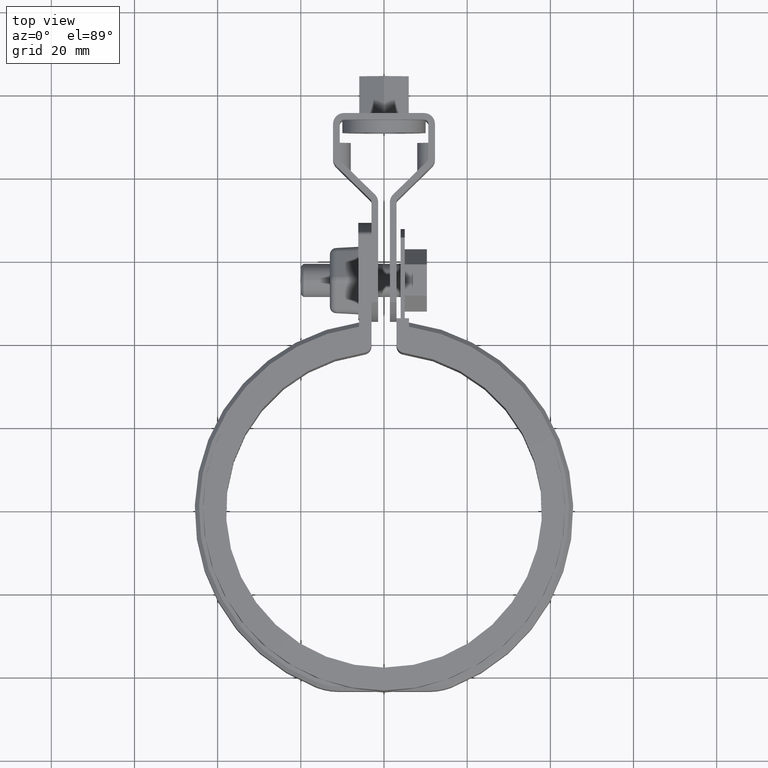
[diagram: clean part render]
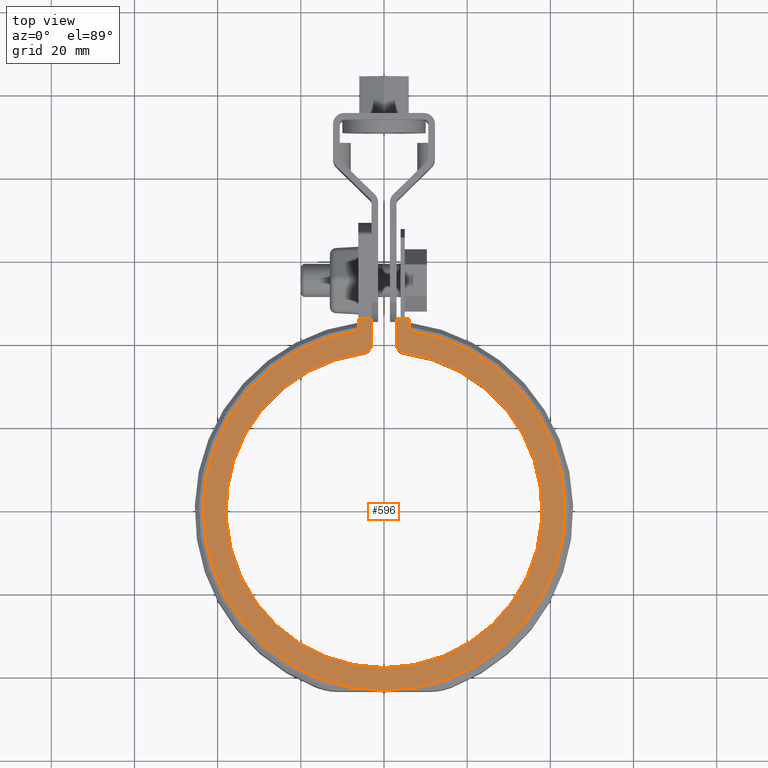
[diagram: same view with one face highlighted and labeled with its STEP entity id]
A machine part, top view. The second image highlights one B-rep face of the part: STEP entity #596.
In plain terms, the highlighted planar face has unit normal (0, 0, -1).
Its self-contained STEP definition (entity closure, byte-faithful):
#596 = ADVANCED_FACE( '', ( #1102 ), #1103, .F. );
#1102 = FACE_OUTER_BOUND( '', #2410, .T. );
#1103 = PLANE( '', #2411 );
#2410 = EDGE_LOOP( '', ( #5437, #5438, #5439, #5440, #5441, #5442, #5443, #5444, #5445, #5446 ) );
#2411 = AXIS2_PLACEMENT_3D( '', #5447, #5448, #5449 );
#5437 = ORIENTED_EDGE( '', *, *, #7465, .F. );
#5438 = ORIENTED_EDGE( '', *, *, #7437, .F. );
#5439 = ORIENTED_EDGE( '', *, *, #7454, .F. );
#5440 = ORIENTED_EDGE( '', *, *, #7482, .F. );
#5441 = ORIENTED_EDGE( '', *, *, #7702, .F. );
#5442 = ORIENTED_EDGE( '', *, *, #7703, .T. );
#5443 = ORIENTED_EDGE( '', *, *, #7674, .T. );
#5444 = ORIENTED_EDGE( '', *, *, #7653, .T. );
#5445 = ORIENTED_EDGE( '', *, *, #7677, .T. );
#5446 = ORIENTED_EDGE( '', *, *, #7533, .T. );
#5447 = CARTESIAN_POINT( '', ( 0.000000000000000, 0.000000000000000, 14.0000000000000 ) );
#5448 = DIRECTION( '', ( 0.000000000000000, 0.000000000000000, -1.00000000000000 ) );
#5449 = DIRECTION( '', ( 0.000000000000000, -1.00000000000000, 0.000000000000000 ) );
#7437 = EDGE_CURVE( '', #8549, #8533, #8551, .T. );
#7454 = EDGE_CURVE( '', #8579, #8549, #8581, .T. );
#7465 = EDGE_CURVE( '', #8533, #8599, #8600, .F. );
#7482 = EDGE_CURVE( '', #8626, #8579, #8629, .T. );
#7533 = EDGE_CURVE( '', #8722, #8599, #8723, .F. );
#7653 = EDGE_CURVE( '', #8926, #8924, #8927, .T. );
#7674 = EDGE_CURVE( '', #8951, #8926, #8952, .F. );
#7677 = EDGE_CURVE( '', #8924, #8722, #8955, .F. );
#7702 = EDGE_CURVE( '', #8992, #8626, #8993, .F. );
#7703 = EDGE_CURVE( '', #8992, #8951, #8994, .F. );
#8533 = VERTEX_POINT( '', #11590 );
#8549 = VERTEX_POINT( '', #11618 );
#8551 = LINE( '', #11621, #11622 );
#8579 = VERTEX_POINT( '', #11659 );
#8581 = CIRCLE( '', #11662, 43.5000000000000 );
#8599 = VERTEX_POINT( '', #11683 );
#8600 = LINE( '', #11684, #11685 );
#8626 = VERTEX_POINT( '', #11728 );
#8629 = LINE( '', #11732, #11733 );
#8722 = VERTEX_POINT( '', #11912 );
#8723 = LINE( '', #11913, #11914 );
#8924 = VERTEX_POINT( '', #12655 );
#8926 = VERTEX_POINT( '', #12658 );
#8927 = CIRCLE( '', #12659, 38.0000000000000 );
#8951 = VERTEX_POINT( '', #12723 );
#8952 = CIRCLE( '', #12724, 2.00000000000000 );
#8955 = CIRCLE( '', #12728, 2.00000000000000 );
#8992 = VERTEX_POINT( '', #12832 );
#8993 = LINE( '', #12833, #12834 );
#8994 = LINE( '', #12835, #12836 );
#11590 = CARTESIAN_POINT( '', ( -6.00000000000000, 46.0106449468841, 14.0000000000000 ) );
#11618 = CARTESIAN_POINT( '', ( -6.00000000000000, 43.0842198490352, 14.0000000000000 ) );
#11621 = CARTESIAN_POINT( '', ( -6.00000000000000, 43.0842198490352, 14.0000000000000 ) );
#11622 = VECTOR( '', #14456, 1000.00000000000 );
#11659 = CARTESIAN_POINT( '', ( 6.00000000000000, 43.0842198490352, 14.0000000000000 ) );
#11662 = AXIS2_PLACEMENT_3D( '', #14485, #14486, #14487 );
#11683 = CARTESIAN_POINT( '', ( -3.00000000000002, 46.0106449468841, 14.0000000000000 ) );
#11684 = CARTESIAN_POINT( '', ( 623.852591999588, 46.0106449468841, 14.0000000000000 ) );
#11685 = VECTOR( '', #14512, 1000.00000000000 );
#11728 = CARTESIAN_POINT( '', ( 6.00000000000000, 46.0106449468841, 14.0000000000000 ) );
#11732 = CARTESIAN_POINT( '', ( 6.00000000000000, 46.1500000000000, 14.0000000000000 ) );
#11733 = VECTOR( '', #14531, 1000.00000000000 );
#11912 = CARTESIAN_POINT( '', ( -3.00000000000002, 39.6862696659689, 14.0000000000000 ) );
#11913 = CARTESIAN_POINT( '', ( -3.00000000000002, 1.82145964977566E-016, 14.0000000000000 ) );
#11914 = VECTOR( '', #14589, 1000.00000000000 );
#12655 = CARTESIAN_POINT( '', ( -4.75000000000002, 37.7019561826704, 14.0000000000000 ) );
#12658 = CARTESIAN_POINT( '', ( 4.75000000000000, 37.7019561826704, 14.0000000000000 ) );
#12659 = AXIS2_PLACEMENT_3D( '', #14698, #14699, #14700 );
#12723 = CARTESIAN_POINT( '', ( 3.00000000000000, 39.6862696659689, 14.0000000000000 ) );
#12724 = AXIS2_PLACEMENT_3D( '', #14720, #14721, #14722 );
#12728 = AXIS2_PLACEMENT_3D( '', #14727, #14728, #14729 );
#12832 = CARTESIAN_POINT( '', ( 3.00000000000000, 46.0106449468841, 14.0000000000000 ) );
#12833 = CARTESIAN_POINT( '', ( 623.852591999588, 46.0106449468841, 14.0000000000000 ) );
#12834 = VECTOR( '', #14742, 1000.00000000000 );
#12835 = CARTESIAN_POINT( '', ( 3.00000000000000, -1.82145964977564E-016, 14.0000000000000 ) );
#12836 = VECTOR( '', #14743, 1000.00000000000 );
#14456 = DIRECTION( '', ( 6.07153216591882E-017, 1.00000000000000, 0.000000000000000 ) );
#14485 = CARTESIAN_POINT( '', ( 0.000000000000000, 0.000000000000000, 14.0000000000000 ) );
#14486 = DIRECTION( '', ( 0.000000000000000, 0.000000000000000, -1.00000000000000 ) );
#14487 = DIRECTION( '', ( -1.00000000000000, 0.000000000000000, 0.000000000000000 ) );
#14512 = DIRECTION( '', ( -1.00000000000000, 0.000000000000000, 0.000000000000000 ) );
#14531 = DIRECTION( '', ( -6.07153216591882E-017, -1.00000000000000, 0.000000000000000 ) );
#14589 = DIRECTION( '', ( -6.07153216591882E-017, -1.00000000000000, 0.000000000000000 ) );
#14698 = CARTESIAN_POINT( '', ( 0.000000000000000, 0.000000000000000, 14.0000000000000 ) );
#14699 = DIRECTION( '', ( 0.000000000000000, 0.000000000000000, -1.00000000000000 ) );
#14700 = DIRECTION( '', ( -1.00000000000000, 0.000000000000000, 0.000000000000000 ) );
#14720 = CARTESIAN_POINT( '', ( 5.00000000000000, 39.6862696659689, 14.0000000000000 ) );
#14721 = DIRECTION( '', ( 0.000000000000000, 0.000000000000000, -1.00000000000000 ) );
#14722 = DIRECTION( '', ( -1.00000000000000, 0.000000000000000, 0.000000000000000 ) );
#14727 = CARTESIAN_POINT( '', ( -5.00000000000002, 39.6862696659689, 14.0000000000000 ) );
#14728 = DIRECTION( '', ( 0.000000000000000, 0.000000000000000, -1.00000000000000 ) );
#14729 = DIRECTION( '', ( -1.00000000000000, 0.000000000000000, 0.000000000000000 ) );
#14742 = DIRECTION( '', ( -1.00000000000000, 0.000000000000000, 0.000000000000000 ) );
#14743 = DIRECTION( '', ( 6.07153216591882E-017, 1.00000000000000, 0.000000000000000 ) );